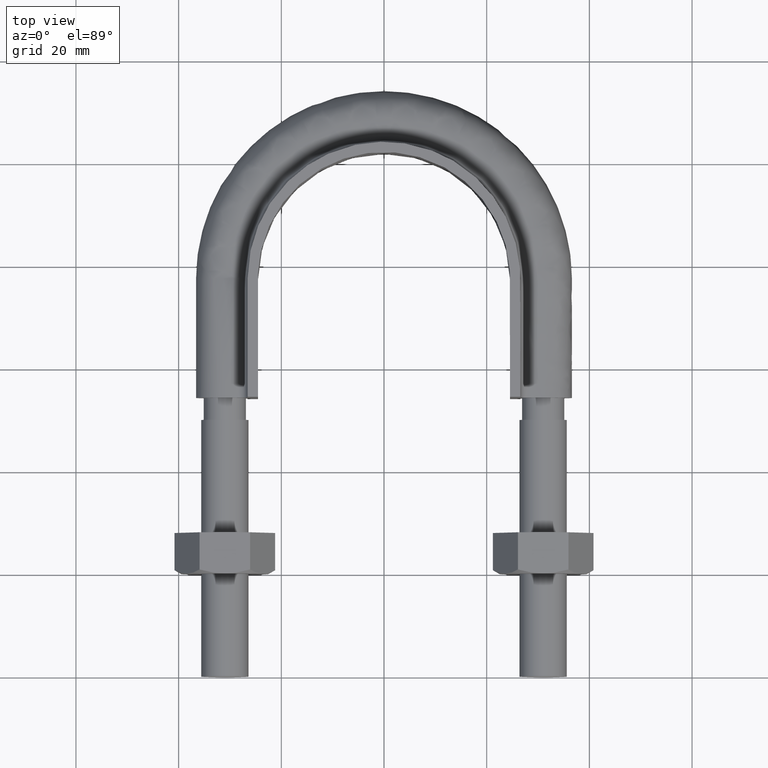
[diagram: clean part render]
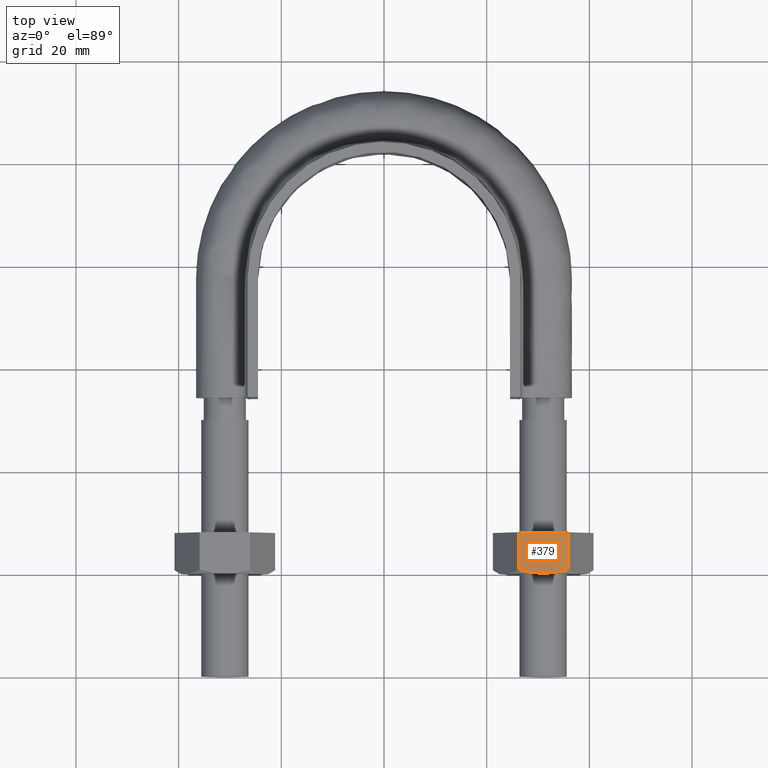
[diagram: same view with one face highlighted and labeled with its STEP entity id]
A machine part, top view. The second image highlights one B-rep face of the part: STEP entity #379.
In plain terms, the highlighted planar face has unit normal (-0, 0, -1).
Its self-contained STEP definition (entity closure, byte-faithful):
#379 = ADVANCED_FACE( '', ( #537 ), #538, .F. );
#537 = FACE_OUTER_BOUND( '', #1536, .T. );
#538 = PLANE( '', #1537 );
#1536 = EDGE_LOOP( '', ( #2016, #2017, #2018, #2019, #2020 ) );
#1537 = AXIS2_PLACEMENT_3D( '', #2021, #2022, #2023 );
#2016 = ORIENTED_EDGE( '', *, *, #2249, .F. );
#2017 = ORIENTED_EDGE( '', *, *, #2244, .F. );
#2018 = ORIENTED_EDGE( '', *, *, #2250, .F. );
#2019 = ORIENTED_EDGE( '', *, *, #2236, .F. );
#2020 = ORIENTED_EDGE( '', *, *, #2251, .F. );
#2021 = CARTESIAN_POINT( '', ( 26.0925227118907, 27.9999999999973, 8.50000000000144 ) );
#2022 = DIRECTION( '', ( -2.90767410149328E-013, 3.06151588455666E-016, -1.00000000000000 ) );
#2023 = DIRECTION( '', ( -1.00000000000000, 2.44921270764386E-016, 2.90767410149328E-013 ) );
#2236 = EDGE_CURVE( '', #2472, #2474, #2475, .T. );
#2244 = EDGE_CURVE( '', #2486, #2435, #2488, .T. );
#2249 = EDGE_CURVE( '', #2435, #2493, #2494, .T. );
#2250 = EDGE_CURVE( '', #2474, #2486, #2495, .F. );
#2251 = EDGE_CURVE( '', #2493, #2472, #2496, .T. );
#2435 = VERTEX_POINT( '', #3023 );
#2472 = VERTEX_POINT( '', #3078 );
#2474 = VERTEX_POINT( '', #3080 );
#2475 = LINE( '', #3081, #3082 );
#2486 = VERTEX_POINT( '', #3103 );
#2488 = B_SPLINE_CURVE_WITH_KNOTS( '', 3, ( #3105, #3106, #3107, #3108, #3109, #3110 ), .UNSPECIFIED., .F., .F., ( 4, 2, 4 ), ( 4.83064900412351E-007, 0.00246777364959070, 0.00493506423428099 ), .UNSPECIFIED. );
#2493 = VERTEX_POINT( '', #3127 );
#2494 = B_SPLINE_CURVE_WITH_KNOTS( '', 3, ( #3128, #3129, #3130, #3131, #3132, #3133, #3134, #3135 ), .UNSPECIFIED., .F., .F., ( 4, 2, 2, 4 ), ( 0.00493506423428099, 0.00616384870526321, 0.00739263317624542, 0.00985020211820987 ), .UNSPECIFIED. );
#2495 = LINE( '', #3136, #3137 );
#2496 = LINE( '', #3138, #3139 );
#3023 = CARTESIAN_POINT( '', ( 31.0000000000025, 19.9999999999973, 8.50000000000001 ) );
#3078 = CARTESIAN_POINT( '', ( 26.1225006406996, 27.9999999999973, 8.50000000000143 ) );
#3080 = CARTESIAN_POINT( '', ( 35.8774993593054, 27.9999999999973, 8.49999999999859 ) );
#3081 = CARTESIAN_POINT( '', ( 35.9000000000025, 27.9999999999973, 8.49999999999858 ) );
#3082 = VECTOR( '', #3376, 1000.00000000000 );
#3103 = CARTESIAN_POINT( '', ( 35.8774993593054, 20.7505553499438, 8.49999999999859 ) );
#3105 = CARTESIAN_POINT( '', ( 35.8774993593054, 20.7505553499438, 8.49999999999859 ) );
#3106 = CARTESIAN_POINT( '', ( 35.0793946307436, 20.5212203171251, 8.49999999999882 ) );
#3107 = CARTESIAN_POINT( '', ( 34.2755256942598, 20.3324525365413, 8.49999999999906 ) );
#3108 = CARTESIAN_POINT( '', ( 32.6512346174584, 20.0714148540559, 8.49999999999952 ) );
#3109 = CARTESIAN_POINT( '', ( 31.8306909832443, 19.9999999999973, 8.49999999999977 ) );
#3110 = CARTESIAN_POINT( '', ( 31.0000000000025, 19.9999999999973, 8.50000000000001 ) );
#3127 = CARTESIAN_POINT( '', ( 26.1225006406996, 20.7505553499438, 8.50000000000142 ) );
#3128 = CARTESIAN_POINT( '', ( 31.0000000000025, 19.9999999999973, 8.50000000000001 ) );
#3129 = CARTESIAN_POINT( '', ( 30.5862910567891, 19.9999999999973, 8.50000000000012 ) );
#3130 = CARTESIAN_POINT( '', ( 30.1705130745750, 20.0177112081736, 8.50000000000025 ) );
#3131 = CARTESIAN_POINT( '', ( 29.3480000229801, 20.0863021936185, 8.50000000000048 ) );
#3132 = CARTESIAN_POINT( '', ( 28.9394776662194, 20.1371116504167, 8.50000000000060 ) );
#3133 = CARTESIAN_POINT( '', ( 27.7211308743354, 20.3331494013886, 8.50000000000096 ) );
#3134 = CARTESIAN_POINT( '', ( 26.9184999349132, 20.5218253127328, 8.50000000000119 ) );
#3135 = CARTESIAN_POINT( '', ( 26.1225006406996, 20.7505553499438, 8.50000000000142 ) );
#3136 = CARTESIAN_POINT( '', ( 35.8774993593054, 27.9999999999973, 8.49999999999859 ) );
#3137 = VECTOR( '', #3391, 1000.00000000000 );
#3138 = CARTESIAN_POINT( '', ( 26.1225006406996, 27.9999999999973, 8.50000000000143 ) );
#3139 = VECTOR( '', #3392, 1000.00000000000 );
#3376 = DIRECTION( '', ( 1.00000000000000, -2.44921270764386E-016, -2.90767410149329E-013 ) );
#3391 = DIRECTION( '', ( 2.44921270764475E-016, 1.00000000000000, 3.06151588455594E-016 ) );
#3392 = DIRECTION( '', ( 2.44921270764475E-016, 1.00000000000000, 3.06151588455594E-016 ) );